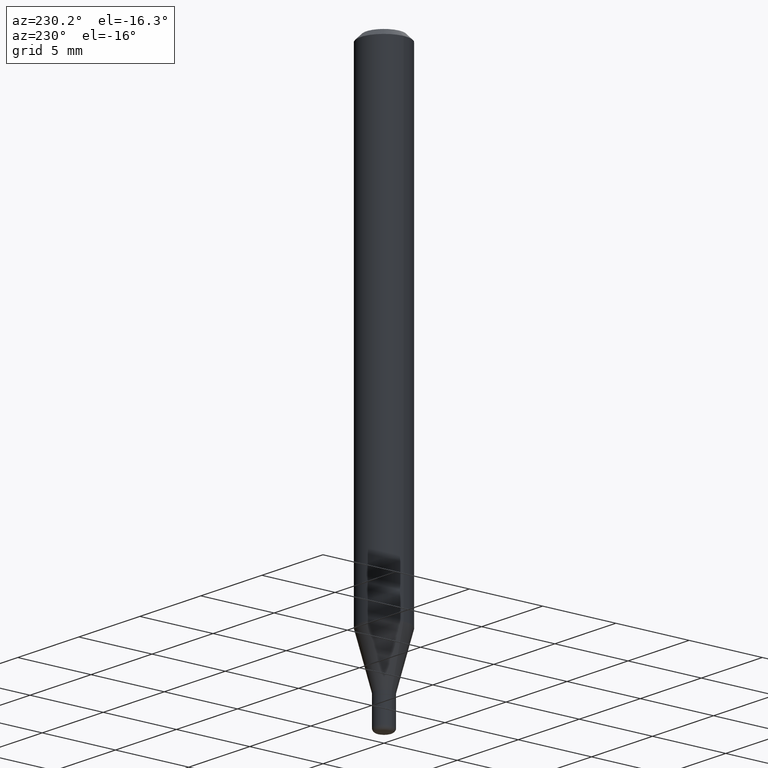
[diagram: clean part render]
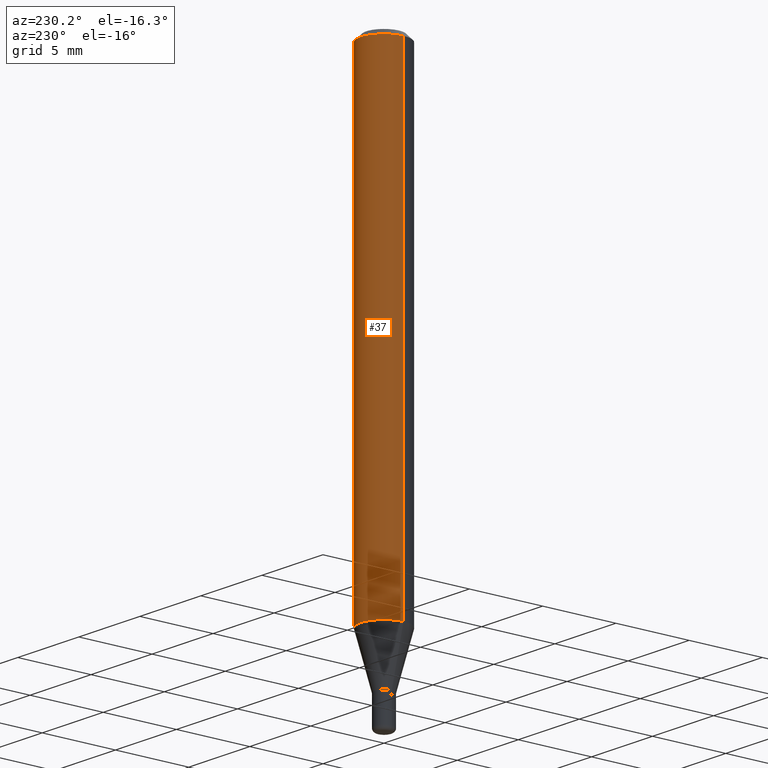
[diagram: same view with one face highlighted and labeled with its STEP entity id]
A machine part, auxiliary view. The second image highlights one B-rep face of the part: STEP entity #37.
In plain terms, the highlighted cylindrical surface (edge-blend (fillet) strip) has radius 1.5875 mm, axis along (-0, 0, 1).
Its self-contained STEP definition (entity closure, byte-faithful):
#11 = CIRCLE ( 'NONE', #481, 0.06250000000000000000 ) ;
#20 = VERTEX_POINT ( 'NONE', #42 ) ;
#31 = CARTESIAN_POINT ( 'NONE',  ( 0.06250000000000000000, -4.888073874380378612E-16, -0.01499999999999970281 ) ) ;
#37 = ADVANCED_FACE ( 'NONE', ( #79 ), #159, .T. ) ;
#42 = CARTESIAN_POINT ( 'NONE',  ( -0.06250000000000000000, -4.007717418978941084E-15, -1.275048094716166869 ) ) ;
#52 = CARTESIAN_POINT ( 'NONE',  ( 3.668203209277632395E-31, -5.237222008264614861E-17, -0.01499999999999970281 ) ) ;
#53 = EDGE_LOOP ( 'NONE', ( #153, #196, #439, #345 ) ) ;
#56 = AXIS2_PLACEMENT_3D ( 'NONE', #236, #325, #485 ) ;
#62 = DIRECTION ( 'NONE',  ( 1.000000000000000000, -6.982962677686262766E-15, 0.000000000000000000 ) ) ;
#66 = DIRECTION ( 'NONE',  ( -2.445468806185136877E-29, 3.491481338843145188E-15, 1.000000000000000000 ) ) ;
#70 = CARTESIAN_POINT ( 'NONE',  ( -0.06250000000000000000, 4.440892098500626162E-16, -3.074334431409316114E-30 ) ) ;
#79 = FACE_OUTER_BOUND ( 'NONE', #53, .T. ) ;
#89 = CARTESIAN_POINT ( 'NONE',  ( -0.06250000000000000000, -1.808000214605762576E-15, -0.01499999999999970281 ) ) ;
#97 = CARTESIAN_POINT ( 'NONE',  ( 3.118090342014177952E-29, -4.451806628829005278E-15, -1.275048094716166869 ) ) ;
#99 = DIRECTION ( 'NONE',  ( -2.445468806185136597E-29, 3.491481338843145583E-15, 1.000000000000000000 ) ) ;
#143 = LINE ( 'NONE', #70, #208 ) ;
#153 = ORIENTED_EDGE ( 'NONE', *, *, #231, .T. ) ;
#157 = EDGE_CURVE ( 'NONE', #392, #204, #478, .T. ) ;
#159 = CYLINDRICAL_SURFACE ( 'NONE', #56, 0.06250000000000000000 ) ;
#188 = CARTESIAN_POINT ( 'NONE',  ( 0.06250000000000000000, -4.364351673553916694E-16, 3.047610484872459871E-30 ) ) ;
#194 = DIRECTION ( 'NONE',  ( -2.445468806185136877E-29, 3.491481338843145188E-15, 1.000000000000000000 ) ) ;
#196 = ORIENTED_EDGE ( 'NONE', *, *, #381, .T. ) ;
#204 = VERTEX_POINT ( 'NONE', #89 ) ;
#208 = VECTOR ( 'NONE', #66, 39.37007874015748143 ) ;
#231 = EDGE_CURVE ( 'NONE', #296, #20, #11, .T. ) ;
#236 = CARTESIAN_POINT ( 'NONE',  ( 0.000000000000000000, 0.000000000000000000, 0.000000000000000000 ) ) ;
#241 = VECTOR ( 'NONE', #194, 39.37007874015748143 ) ;
#254 = AXIS2_PLACEMENT_3D ( 'NONE', #52, #99, #379 ) ;
#296 = VERTEX_POINT ( 'NONE', #463 ) ;
#300 = EDGE_CURVE ( 'NONE', #296, #392, #466, .T. ) ;
#325 = DIRECTION ( 'NONE',  ( -2.445468806185136597E-29, 3.491481338843145583E-15, 1.000000000000000000 ) ) ;
#345 = ORIENTED_EDGE ( 'NONE', *, *, #300, .F. ) ;
#379 = DIRECTION ( 'NONE',  ( 1.000000000000000000, -6.982962677686266711E-15, 0.000000000000000000 ) ) ;
#381 = EDGE_CURVE ( 'NONE', #20, #204, #143, .T. ) ;
#392 = VERTEX_POINT ( 'NONE', #31 ) ;
#424 = DIRECTION ( 'NONE',  ( -2.445468806185136597E-29, 3.491481338843145583E-15, 1.000000000000000000 ) ) ;
#439 = ORIENTED_EDGE ( 'NONE', *, *, #157, .F. ) ;
#463 = CARTESIAN_POINT ( 'NONE',  ( 0.06250000000000000000, -4.888241796184395369E-15, -1.275048094716166869 ) ) ;
#466 = LINE ( 'NONE', #188, #241 ) ;
#478 = CIRCLE ( 'NONE', #254, 0.06250000000000000000 ) ;
#481 = AXIS2_PLACEMENT_3D ( 'NONE', #97, #424, #62 ) ;
#485 = DIRECTION ( 'NONE',  ( 1.000000000000000000, -6.982962677686266711E-15, 4.876176775795935793E-29 ) ) ;